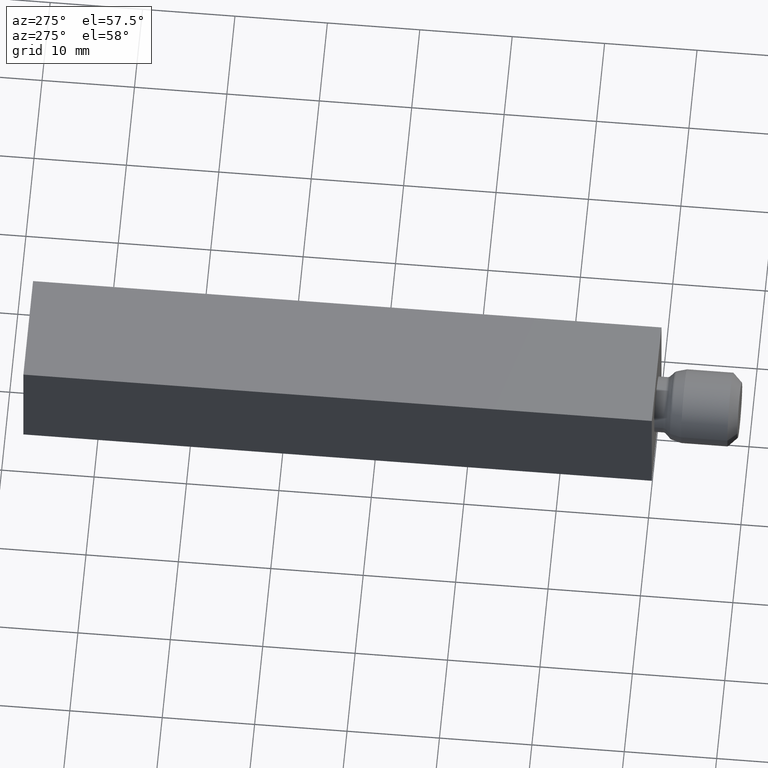
[diagram: clean part render]
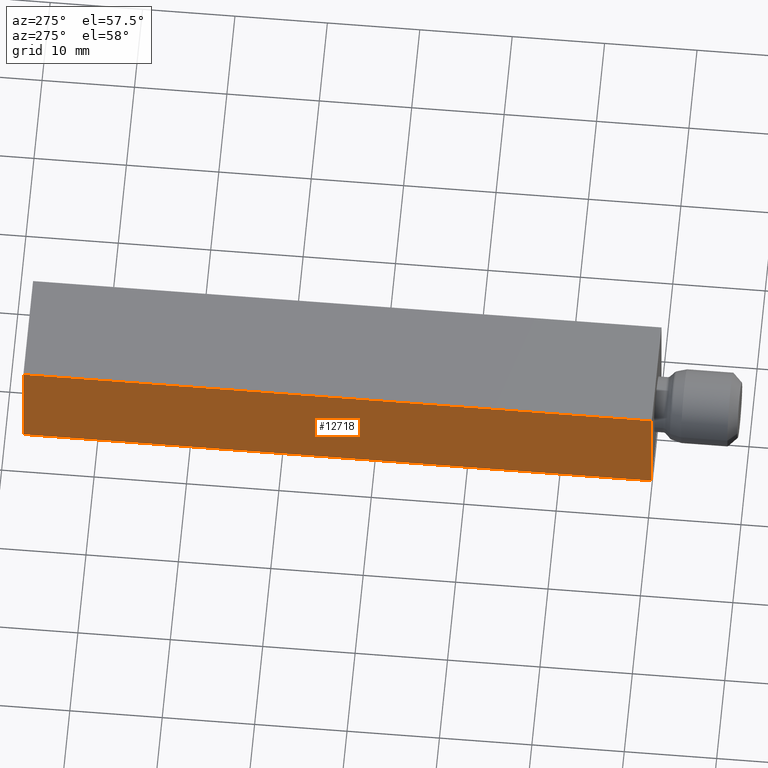
[diagram: same view with one face highlighted and labeled with its STEP entity id]
A machine part, auxiliary view. The second image highlights one B-rep face of the part: STEP entity #12718.
In plain terms, the highlighted planar face has unit normal (1, 0, -0).
Its self-contained STEP definition (entity closure, byte-faithful):
#280 = VERTEX_POINT ( 'NONE', #10686 ) ;
#333 = VERTEX_POINT ( 'NONE', #7523 ) ;
#352 = CARTESIAN_POINT ( 'NONE',  ( -6.000000000000009800, 68.00000000000000000, 5.999999999999999100 ) ) ;
#763 = VERTEX_POINT ( 'NONE', #1407 ) ;
#924 = LINE ( 'NONE', #3715, #9301 ) ;
#1187 = DIRECTION ( 'NONE',  ( 1.000000000000000000, 1.224646799147353200E-016, -1.445602896647339200E-016 ) ) ;
#1203 = ORIENTED_EDGE ( 'NONE', *, *, #10071, .F. ) ;
#1254 = ORIENTED_EDGE ( 'NONE', *, *, #12398, .T. ) ;
#1360 = DIRECTION ( 'NONE',  ( 1.224646799147353200E-016, -1.000000000000000000, -0.0000000000000000000 ) ) ;
#1407 = CARTESIAN_POINT ( 'NONE',  ( -6.000000000000009800, 68.00000000000000000, 5.999999999999999100 ) ) ;
#1440 = CARTESIAN_POINT ( 'NONE',  ( -6.000000000000000900, -7.347880794884120700E-016, 5.999999999999999100 ) ) ;
#1862 = ORIENTED_EDGE ( 'NONE', *, *, #6610, .T. ) ;
#1994 = VECTOR ( 'NONE', #11448, 1000.000000000000000 ) ;
#3379 = DIRECTION ( 'NONE',  ( 1.445602896647339200E-016, 1.604941620322696500E-032, 1.000000000000000000 ) ) ;
#3662 = VECTOR ( 'NONE', #1360, 1000.000000000000000 ) ;
#3715 = CARTESIAN_POINT ( 'NONE',  ( -6.000000000000011500, 68.00000000000000000, -6.000000000000000900 ) ) ;
#3749 = ORIENTED_EDGE ( 'NONE', *, *, #7157, .F. ) ;
#4304 = VECTOR ( 'NONE', #3379, 1000.000000000000000 ) ;
#5093 = LINE ( 'NONE', #5414, #4304 ) ;
#5414 = CARTESIAN_POINT ( 'NONE',  ( -6.000000000000002700, -7.347880794884122700E-016, -6.000000000000000900 ) ) ;
#6255 = VERTEX_POINT ( 'NONE', #1440 ) ;
#6610 = EDGE_CURVE ( 'NONE', #280, #6255, #5093, .T. ) ;
#7157 = EDGE_CURVE ( 'NONE', #763, #6255, #8220, .T. ) ;
#7453 = EDGE_LOOP ( 'NONE', ( #1862, #3749, #1203, #1254 ) ) ;
#7523 = CARTESIAN_POINT ( 'NONE',  ( -6.000000000000011500, 68.00000000000000000, -6.000000000000000900 ) ) ;
#8220 = LINE ( 'NONE', #352, #3662 ) ;
#8273 = CARTESIAN_POINT ( 'NONE',  ( -6.000000000000011500, 68.00000000000000000, -6.000000000000000900 ) ) ;
#9226 = DIRECTION ( 'NONE',  ( -1.445602896647339200E-016, 0.0000000000000000000, -1.000000000000000000 ) ) ;
#9301 = VECTOR ( 'NONE', #10799, 1000.000000000000000 ) ;
#10071 = EDGE_CURVE ( 'NONE', #333, #763, #924, .T. ) ;
#10165 = PLANE ( 'NONE',  #12607 ) ;
#10686 = CARTESIAN_POINT ( 'NONE',  ( -6.000000000000002700, -7.347880794884122700E-016, -6.000000000000000900 ) ) ;
#10799 = DIRECTION ( 'NONE',  ( 1.445602896647339200E-016, 1.604941620322696500E-032, 1.000000000000000000 ) ) ;
#11161 = FACE_OUTER_BOUND ( 'NONE', #7453, .T. ) ;
#11448 = DIRECTION ( 'NONE',  ( 1.224646799147353200E-016, -1.000000000000000000, -0.0000000000000000000 ) ) ;
#12115 = CARTESIAN_POINT ( 'NONE',  ( -6.000000000000011500, 68.00000000000000000, -6.000000000000000900 ) ) ;
#12398 = EDGE_CURVE ( 'NONE', #333, #280, #13027, .T. ) ;
#12607 = AXIS2_PLACEMENT_3D ( 'NONE', #12115, #1187, #9226 ) ;
#12718 = ADVANCED_FACE ( 'NONE', ( #11161 ), #10165, .F. ) ;
#13027 = LINE ( 'NONE', #8273, #1994 ) ;